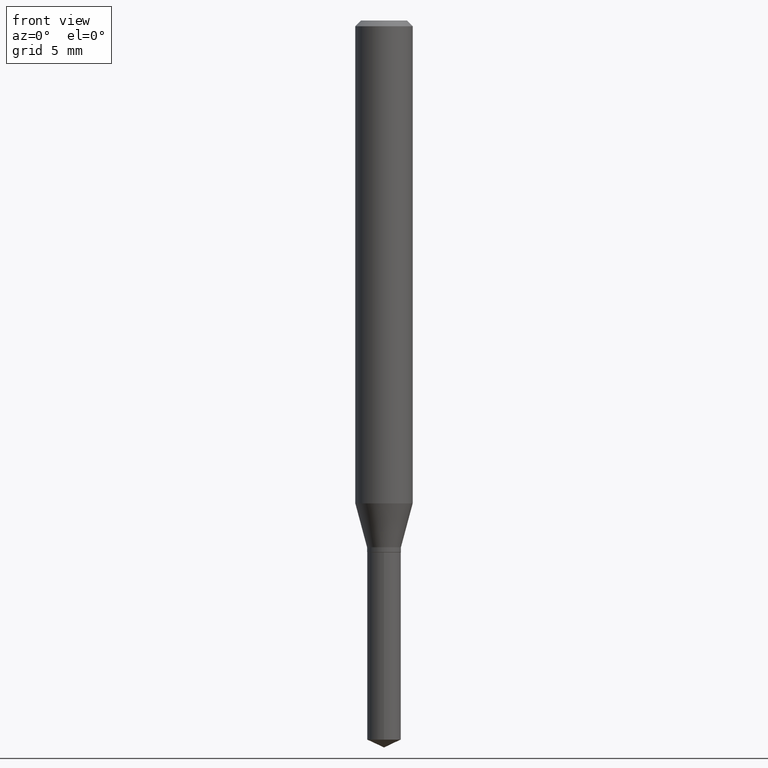
[diagram: clean part render]
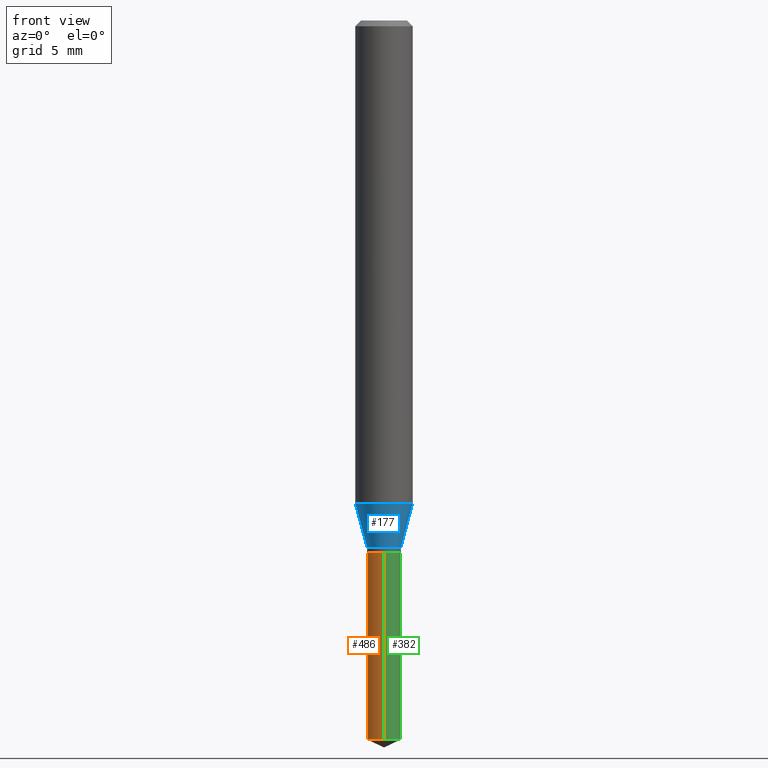
[diagram: same view with three faces highlighted in distinct colors, each labeled with its STEP entity id]
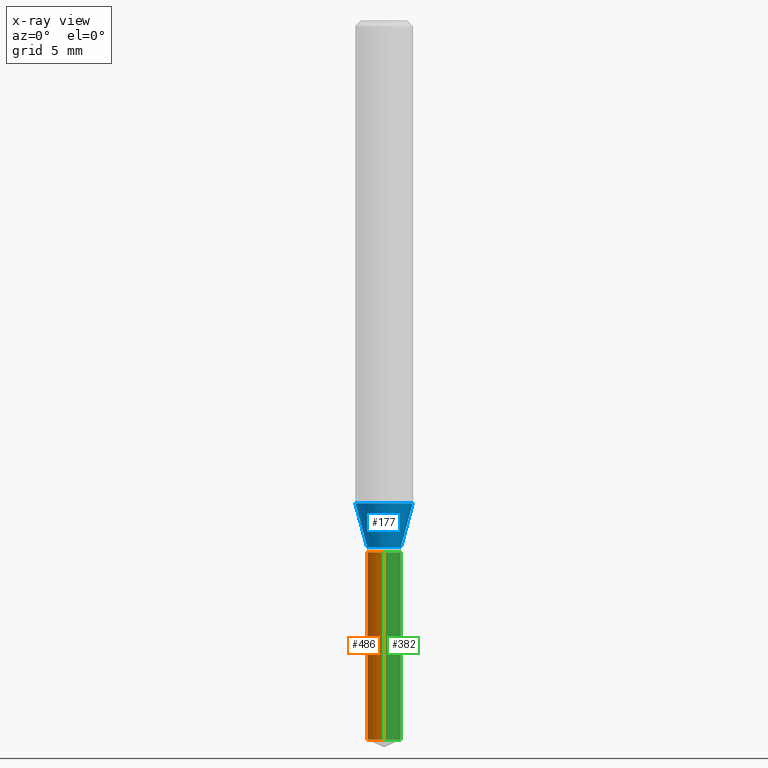
[diagram: x-ray of the same camera — body ghosted, the three highlighted faces saturated]
A machine part, front view with three faces highlighted in distinct colors.
The next image is the same camera in x-ray (body ghosted, the three faces saturated) — at least one of them is partly hidden behind the body in this view.
Their STEP definitions:

[orange] entity #486 — the highlighted cylindrical surface (edge-blend (fillet) strip) has radius 0.8852 mm, axis along (-0, 0, 1).
#1 = EDGE_CURVE ( 'NONE', #14, #194, #490, .T. ) ;
#4 = DIRECTION ( 'NONE',  ( -2.445470214571802116E-29, 3.491479321953280158E-15, 1.000000000000000000 ) ) ;
#10 = CARTESIAN_POINT ( 'NONE',  ( 2.676565608369631794E-29, -3.821426325363822773E-15, -1.094499999999999806 ) ) ;
#13 = VERTEX_POINT ( 'NONE', #85 ) ;
#14 = VERTEX_POINT ( 'NONE', #417 ) ;
#57 = CARTESIAN_POINT ( 'NONE',  ( -2.433562493173396016E-16, -0.03485000000000382236, -1.094499999999999806 ) ) ;
#77 = ORIENTED_EDGE ( 'NONE', *, *, #1, .F. ) ;
#81 = VECTOR ( 'NONE', #444, 39.37007874015748143 ) ;
#85 = CARTESIAN_POINT ( 'NONE',  ( 2.476241434124310969E-16, 0.03484999999999483650, -1.479849178113298525 ) ) ;
#91 = EDGE_LOOP ( 'NONE', ( #299, #197, #395, #77 ) ) ;
#96 = AXIS2_PLACEMENT_3D ( 'NONE', #254, #193, #419 ) ;
#104 = LINE ( 'NONE', #210, #81 ) ;
#108 = CYLINDRICAL_SURFACE ( 'NONE', #96, 0.03484999999999999903 ) ;
#131 = VERTEX_POINT ( 'NONE', #267 ) ;
#192 = CARTESIAN_POINT ( 'NONE',  ( 2.476241434124216306E-16, 0.03484999999999618264, -1.094500000000000028 ) ) ;
#193 = DIRECTION ( 'NONE',  ( -2.445470214571802116E-29, 3.491479321953280158E-15, 1.000000000000000000 ) ) ;
#194 = VERTEX_POINT ( 'NONE', #57 ) ;
#197 = ORIENTED_EDGE ( 'NONE', *, *, #430, .T. ) ;
#198 = CIRCLE ( 'NONE', #327, 0.03484999999999999903 ) ;
#210 = CARTESIAN_POINT ( 'NONE',  ( -2.433562493173396016E-16, -0.03485000000000382236, -1.094499999999999806 ) ) ;
#223 = EDGE_CURVE ( 'NONE', #13, #14, #265, .T. ) ;
#241 = EDGE_CURVE ( 'NONE', #131, #194, #104, .T. ) ;
#254 = CARTESIAN_POINT ( 'NONE',  ( 2.676565608369631794E-29, -3.821426325363822773E-15, -1.094499999999999806 ) ) ;
#265 = LINE ( 'NONE', #192, #318 ) ;
#267 = CARTESIAN_POINT ( 'NONE',  ( -2.433562493173301846E-16, -0.03485000000000516851, -1.479849178113298525 ) ) ;
#282 = AXIS2_PLACEMENT_3D ( 'NONE', #10, #422, #379 ) ;
#287 = DIRECTION ( 'NONE',  ( -6.982962677686265922E-15, -1.000000000000000000, 0.000000000000000000 ) ) ;
#299 = ORIENTED_EDGE ( 'NONE', *, *, #223, .F. ) ;
#318 = VECTOR ( 'NONE', #377, 39.37007874015748143 ) ;
#327 = AXIS2_PLACEMENT_3D ( 'NONE', #421, #4, #287 ) ;
#377 = DIRECTION ( 'NONE',  ( -2.445470214571802396E-29, 3.491479321953280158E-15, 1.000000000000000000 ) ) ;
#379 = DIRECTION ( 'NONE',  ( -6.982962677686265922E-15, -1.000000000000000000, 3.919437580580004543E-15 ) ) ;
#395 = ORIENTED_EDGE ( 'NONE', *, *, #241, .T. ) ;
#417 = CARTESIAN_POINT ( 'NONE',  ( 2.476241434124311462E-16, 0.03484999999999618264, -1.094500000000000028 ) ) ;
#419 = DIRECTION ( 'NONE',  ( -6.982962677686265922E-15, -1.000000000000000000, 3.919437580580004543E-15 ) ) ;
#421 = CARTESIAN_POINT ( 'NONE',  ( 3.618925545655427938E-29, -5.166865012478095692E-15, -1.479849178113298525 ) ) ;
#422 = DIRECTION ( 'NONE',  ( -2.445470214571802116E-29, 3.491479321953280158E-15, 1.000000000000000000 ) ) ;
#430 = EDGE_CURVE ( 'NONE', #13, #131, #198, .T. ) ;
#444 = DIRECTION ( 'NONE',  ( -2.445470214571802396E-29, 3.491479321953280158E-15, 1.000000000000000000 ) ) ;
#452 = FACE_OUTER_BOUND ( 'NONE', #91, .T. ) ;
#486 = ADVANCED_FACE ( 'NONE', ( #452 ), #108, .T. ) ;
#490 = CIRCLE ( 'NONE', #282, 0.03484999999999999903 ) ;

[blue] entity #177 — the highlighted conical surface has half-angle 15 deg.
#15 = DIRECTION ( 'NONE',  ( 1.000000000000000000, -6.982962677686261977E-15, 0.000000000000000000 ) ) ;
#21 = ORIENTED_EDGE ( 'NONE', *, *, #211, .T. ) ;
#24 = ORIENTED_EDGE ( 'NONE', *, *, #410, .F. ) ;
#32 = VECTOR ( 'NONE', #183, 39.37007874015748854 ) ;
#53 = VERTEX_POINT ( 'NONE', #420 ) ;
#54 = DIRECTION ( 'NONE',  ( -2.445468806185136597E-29, 3.491481338843145583E-15, 1.000000000000000000 ) ) ;
#76 = DIRECTION ( 'NONE',  ( 1.000000000000000000, -6.982962677686266711E-15, 0.000000000000000000 ) ) ;
#89 = AXIS2_PLACEMENT_3D ( 'NONE', #255, #412, #76 ) ;
#93 = LINE ( 'NONE', #202, #316 ) ;
#106 = ORIENTED_EDGE ( 'NONE', *, *, #348, .T. ) ;
#111 = EDGE_LOOP ( 'NONE', ( #236, #21, #106, #24 ) ) ;
#151 = EDGE_CURVE ( 'NONE', #162, #53, #93, .T. ) ;
#162 = VERTEX_POINT ( 'NONE', #272 ) ;
#163 = DIRECTION ( 'NONE',  ( -2.445468806185136597E-29, 3.491481338843145583E-15, 1.000000000000000000 ) ) ;
#177 = ADVANCED_FACE ( 'NONE', ( #345 ), #392, .T. ) ;
#183 = DIRECTION ( 'NONE',  ( 0.2588190451025211281, 1.565188264969622954E-15, 0.9659258262890679791 ) ) ;
#202 = CARTESIAN_POINT ( 'NONE',  ( -0.03484999999999999903, -3.537141627893574762E-15, -1.084000000000000075 ) ) ;
#203 = DIRECTION ( 'NONE',  ( 1.000000000000000000, -6.982962677686261977E-15, 0.000000000000000000 ) ) ;
#211 = EDGE_CURVE ( 'NONE', #162, #450, #328, .T. ) ;
#221 = LINE ( 'NONE', #367, #32 ) ;
#236 = ORIENTED_EDGE ( 'NONE', *, *, #151, .F. ) ;
#255 = CARTESIAN_POINT ( 'NONE',  ( 2.430024131145899834E-29, -3.469430436150130776E-15, -0.9936843704568328883 ) ) ;
#272 = CARTESIAN_POINT ( 'NONE',  ( -0.03484999999999999903, -3.554599034587790192E-15, -1.084000000000000075 ) ) ;
#284 = CIRCLE ( 'NONE', #89, 0.05905000000000011628 ) ;
#311 = VERTEX_POINT ( 'NONE', #352 ) ;
#316 = VECTOR ( 'NONE', #429, 39.37007874015748854 ) ;
#328 = CIRCLE ( 'NONE', #436, 0.03484999999999999903 ) ;
#340 = CARTESIAN_POINT ( 'NONE',  ( 2.650888185904688008E-29, -3.784765771305969621E-15, -1.084000000000000075 ) ) ;
#343 = CARTESIAN_POINT ( 'NONE',  ( 2.650888185904688008E-29, -3.784765771305969621E-15, -1.084000000000000075 ) ) ;
#345 = FACE_OUTER_BOUND ( 'NONE', #111, .T. ) ;
#348 = EDGE_CURVE ( 'NONE', #450, #311, #221, .T. ) ;
#352 = CARTESIAN_POINT ( 'NONE',  ( 0.05905000000000011628, -3.881774382267505696E-15, -0.9936843704568328883 ) ) ;
#353 = AXIS2_PLACEMENT_3D ( 'NONE', #340, #54, #203 ) ;
#367 = CARTESIAN_POINT ( 'NONE',  ( 0.03484999999999999903, -4.028122020623335896E-15, -1.084000000000000075 ) ) ;
#392 = CONICAL_SURFACE ( 'NONE', #353, 0.03484999999999999903, 0.2617993877991498519 ) ;
#410 = EDGE_CURVE ( 'NONE', #53, #311, #284, .T. ) ;
#412 = DIRECTION ( 'NONE',  ( -2.445468806185136597E-29, 3.491481338843145583E-15, 1.000000000000000000 ) ) ;
#420 = CARTESIAN_POINT ( 'NONE',  ( -0.05905000000000011628, -3.049854950683790888E-15, -0.9936843704568328883 ) ) ;
#429 = DIRECTION ( 'NONE',  ( -0.2588190451025211281, 5.211531920934547886E-15, 0.9659258262890679791 ) ) ;
#436 = AXIS2_PLACEMENT_3D ( 'NONE', #343, #163, #15 ) ;
#450 = VERTEX_POINT ( 'NONE', #459 ) ;
#459 = CARTESIAN_POINT ( 'NONE',  ( 0.03484999999999999903, -4.028122020623335896E-15, -1.084000000000000075 ) ) ;

[green] entity #382 — the highlighted cylindrical surface (edge-blend (fillet) strip) has radius 0.8852 mm, axis along (-0, 0, 1).
#13 = VERTEX_POINT ( 'NONE', #85 ) ;
#14 = VERTEX_POINT ( 'NONE', #417 ) ;
#16 = DIRECTION ( 'NONE',  ( -6.982962677686265922E-15, -1.000000000000000000, 0.000000000000000000 ) ) ;
#18 = ORIENTED_EDGE ( 'NONE', *, *, #223, .T. ) ;
#57 = CARTESIAN_POINT ( 'NONE',  ( -2.433562493173396016E-16, -0.03485000000000382236, -1.094499999999999806 ) ) ;
#62 = AXIS2_PLACEMENT_3D ( 'NONE', #457, #78, #366 ) ;
#63 = ORIENTED_EDGE ( 'NONE', *, *, #142, .T. ) ;
#74 = FACE_OUTER_BOUND ( 'NONE', #201, .T. ) ;
#78 = DIRECTION ( 'NONE',  ( -2.445470214571802116E-29, 3.491479321953280158E-15, 1.000000000000000000 ) ) ;
#81 = VECTOR ( 'NONE', #444, 39.37007874015748143 ) ;
#84 = DIRECTION ( 'NONE',  ( -2.445470214571802116E-29, 3.491479321953280158E-15, 1.000000000000000000 ) ) ;
#85 = CARTESIAN_POINT ( 'NONE',  ( 2.476241434124310969E-16, 0.03484999999999483650, -1.479849178113298525 ) ) ;
#104 = LINE ( 'NONE', #210, #81 ) ;
#121 = CARTESIAN_POINT ( 'NONE',  ( 2.676565608369631794E-29, -3.821426325363822773E-15, -1.094499999999999806 ) ) ;
#131 = VERTEX_POINT ( 'NONE', #267 ) ;
#142 = EDGE_CURVE ( 'NONE', #131, #13, #252, .T. ) ;
#147 = CIRCLE ( 'NONE', #173, 0.03484999999999999903 ) ;
#173 = AXIS2_PLACEMENT_3D ( 'NONE', #121, #84, #257 ) ;
#192 = CARTESIAN_POINT ( 'NONE',  ( 2.476241434124216306E-16, 0.03484999999999618264, -1.094500000000000028 ) ) ;
#194 = VERTEX_POINT ( 'NONE', #57 ) ;
#201 = EDGE_LOOP ( 'NONE', ( #63, #18, #330, #317 ) ) ;
#210 = CARTESIAN_POINT ( 'NONE',  ( -2.433562493173396016E-16, -0.03485000000000382236, -1.094499999999999806 ) ) ;
#223 = EDGE_CURVE ( 'NONE', #13, #14, #265, .T. ) ;
#241 = EDGE_CURVE ( 'NONE', #131, #194, #104, .T. ) ;
#252 = CIRCLE ( 'NONE', #470, 0.03484999999999999903 ) ;
#257 = DIRECTION ( 'NONE',  ( -6.982962677686265922E-15, -1.000000000000000000, 3.919437580580004543E-15 ) ) ;
#265 = LINE ( 'NONE', #192, #318 ) ;
#267 = CARTESIAN_POINT ( 'NONE',  ( -2.433562493173301846E-16, -0.03485000000000516851, -1.479849178113298525 ) ) ;
#283 = CYLINDRICAL_SURFACE ( 'NONE', #62, 0.03484999999999999903 ) ;
#317 = ORIENTED_EDGE ( 'NONE', *, *, #241, .F. ) ;
#318 = VECTOR ( 'NONE', #377, 39.37007874015748143 ) ;
#330 = ORIENTED_EDGE ( 'NONE', *, *, #471, .F. ) ;
#366 = DIRECTION ( 'NONE',  ( -6.982962677686265922E-15, -1.000000000000000000, 3.919437580580004543E-15 ) ) ;
#377 = DIRECTION ( 'NONE',  ( -2.445470214571802396E-29, 3.491479321953280158E-15, 1.000000000000000000 ) ) ;
#382 = ADVANCED_FACE ( 'NONE', ( #74 ), #283, .T. ) ;
#417 = CARTESIAN_POINT ( 'NONE',  ( 2.476241434124311462E-16, 0.03484999999999618264, -1.094500000000000028 ) ) ;
#431 = DIRECTION ( 'NONE',  ( -2.445470214571802116E-29, 3.491479321953280158E-15, 1.000000000000000000 ) ) ;
#444 = DIRECTION ( 'NONE',  ( -2.445470214571802396E-29, 3.491479321953280158E-15, 1.000000000000000000 ) ) ;
#457 = CARTESIAN_POINT ( 'NONE',  ( 2.676565608369631794E-29, -3.821426325363822773E-15, -1.094499999999999806 ) ) ;
#470 = AXIS2_PLACEMENT_3D ( 'NONE', #477, #431, #16 ) ;
#471 = EDGE_CURVE ( 'NONE', #194, #14, #147, .T. ) ;
#477 = CARTESIAN_POINT ( 'NONE',  ( 3.618925545655427938E-29, -5.166865012478095692E-15, -1.479849178113298525 ) ) ;